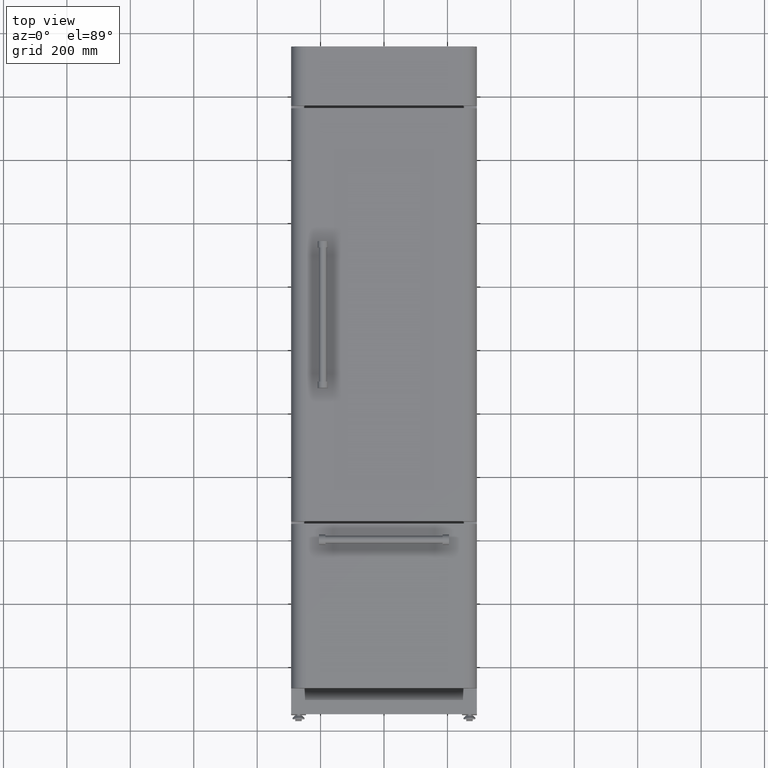
[diagram: clean part render]
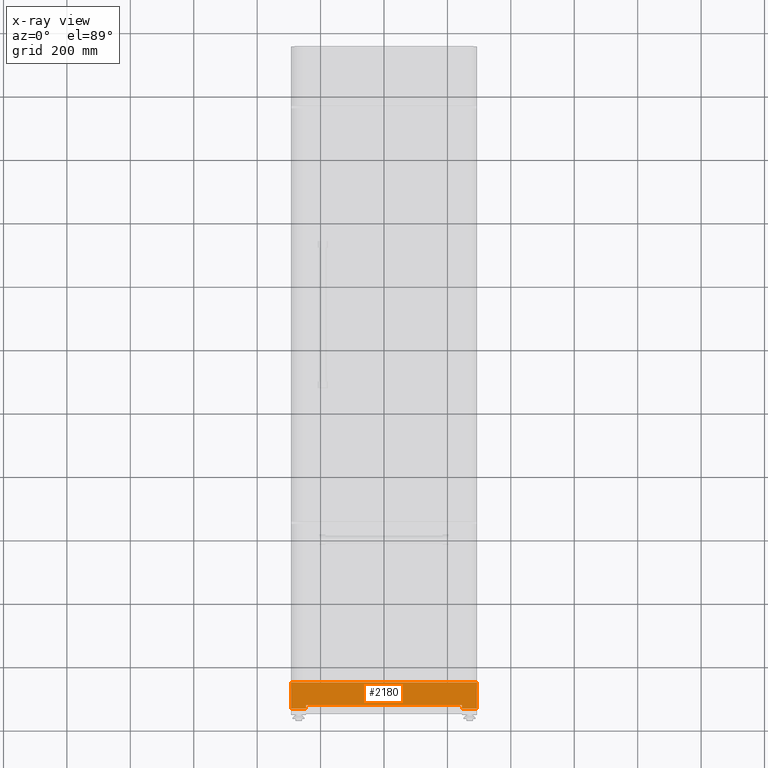
[diagram: x-ray — body ghosted, one internal face saturated and labeled with its STEP entity id]
A machine part, top view, then the same camera in x-ray: the body is ghosted and one INTERNAL B-rep face — a face not visible from any outside direction — is saturated and labeled: STEP entity #2180.
In plain terms, the highlighted planar face has unit normal (0, 0, -1).
Its self-contained STEP definition (entity closure, byte-faithful):
#13 = LINE ( 'NONE', #3944, #2074 ) ;
#76 = ORIENTED_EDGE ( 'NONE', *, *, #3961, .F. ) ;
#83 = LINE ( 'NONE', #472, #4228 ) ;
#123 = LINE ( 'NONE', #1436, #4274 ) ;
#227 = LINE ( 'NONE', #1966, #4376 ) ;
#335 = CARTESIAN_POINT ( 'NONE',  ( 293.0000000000000600, -856.5500000000000700, 240.0000000000002000 ) ) ;
#373 = CARTESIAN_POINT ( 'NONE',  ( -293.0000000000000000, -939.3499999999999100, 240.0000000000002000 ) ) ;
#386 = ORIENTED_EDGE ( 'NONE', *, *, #5160, .F. ) ;
#396 = EDGE_CURVE ( 'NONE', #4871, #1084, #2836, .T. ) ;
#472 = CARTESIAN_POINT ( 'NONE',  ( 293.0000000000000000, -939.3499999999999100, 240.0000000000002000 ) ) ;
#505 = EDGE_CURVE ( 'NONE', #1970, #760, #4749, .T. ) ;
#560 = CARTESIAN_POINT ( 'NONE',  ( -246.0000000000000000, -928.3499999999998000, 240.0000000000002000 ) ) ;
#619 = AXIS2_PLACEMENT_3D ( 'NONE', #1153, #3925, #3941 ) ;
#642 = CARTESIAN_POINT ( 'NONE',  ( -293.0000000000000000, -939.3499999999999100, 240.0000000000002000 ) ) ;
#760 = VERTEX_POINT ( 'NONE', #1390 ) ;
#778 = DIRECTION ( 'NONE',  ( 1.000000000000000000, -0.0000000000000000000, -0.0000000000000000000 ) ) ;
#811 = VERTEX_POINT ( 'NONE', #5220 ) ;
#1008 = DIRECTION ( 'NONE',  ( -1.000000000000000000, -0.0000000000000000000, -0.0000000000000000000 ) ) ;
#1084 = VERTEX_POINT ( 'NONE', #2349 ) ;
#1149 = VERTEX_POINT ( 'NONE', #5178 ) ;
#1153 = CARTESIAN_POINT ( 'NONE',  ( -293.0000000000000000, -939.3499999999999100, 240.0000000000002000 ) ) ;
#1213 = ORIENTED_EDGE ( 'NONE', *, *, #1357, .T. ) ;
#1214 = VECTOR ( 'NONE', #3407, 1000.000000000000000 ) ;
#1335 = ORIENTED_EDGE ( 'NONE', *, *, #396, .F. ) ;
#1357 = EDGE_CURVE ( 'NONE', #4871, #5120, #4896, .T. ) ;
#1377 = VERTEX_POINT ( 'NONE', #4256 ) ;
#1390 = CARTESIAN_POINT ( 'NONE',  ( 293.0000000000000600, -856.5500000000000700, 240.0000000000002000 ) ) ;
#1421 = ORIENTED_EDGE ( 'NONE', *, *, #4112, .F. ) ;
#1436 = CARTESIAN_POINT ( 'NONE',  ( -246.0000000000000000, -928.3499999999998000, 240.0000000000002000 ) ) ;
#1470 = CARTESIAN_POINT ( 'NONE',  ( -292.7999999999997800, -856.3500000000001400, 240.0000000000002000 ) ) ;
#1517 = CARTESIAN_POINT ( 'NONE',  ( -292.7999999999997800, -856.3500000000001400, 240.0000000000002000 ) ) ;
#1528 = ORIENTED_EDGE ( 'NONE', *, *, #4330, .T. ) ;
#1966 = CARTESIAN_POINT ( 'NONE',  ( -293.0000000000000000, -939.3499999999999100, 240.0000000000002000 ) ) ;
#1970 = VERTEX_POINT ( 'NONE', #4555 ) ;
#2074 = VECTOR ( 'NONE', #778, 1000.000000000000000 ) ;
#2152 = LINE ( 'NONE', #1470, #2716 ) ;
#2165 = VECTOR ( 'NONE', #2803, 1000.000000000000000 ) ;
#2180 = ADVANCED_FACE ( 'NONE', ( #3464 ), #3523, .F. ) ;
#2208 = CARTESIAN_POINT ( 'NONE',  ( -292.7999999999997800, -856.5500000000001800, 240.0000000000002000 ) ) ;
#2228 = CARTESIAN_POINT ( 'NONE',  ( 293.0000000000000000, -939.3499999999999100, 240.0000000000002000 ) ) ;
#2319 = EDGE_CURVE ( 'NONE', #811, #1970, #3988, .T. ) ;
#2324 = ORIENTED_EDGE ( 'NONE', *, *, #4855, .F. ) ;
#2332 = DIRECTION ( 'NONE',  ( 1.000000000000000000, -0.0000000000000000000, -0.0000000000000000000 ) ) ;
#2349 = CARTESIAN_POINT ( 'NONE',  ( 246.0000000000000000, -928.3499999999998000, 240.0000000000002000 ) ) ;
#2395 = EDGE_CURVE ( 'NONE', #2432, #1149, #227, .T. ) ;
#2432 = VERTEX_POINT ( 'NONE', #373 ) ;
#2488 = VECTOR ( 'NONE', #3113, 1000.000000000000000 ) ;
#2501 = EDGE_CURVE ( 'NONE', #1377, #4349, #5006, .T. ) ;
#2534 = ORIENTED_EDGE ( 'NONE', *, *, #505, .F. ) ;
#2542 = VECTOR ( 'NONE', #1008, 1000.000000000000000 ) ;
#2716 = VECTOR ( 'NONE', #4719, 1000.000000000000000 ) ;
#2803 = DIRECTION ( 'NONE',  ( 1.000000000000000000, 0.0000000000000000000, 0.0000000000000000000 ) ) ;
#2836 = LINE ( 'NONE', #4781, #4362 ) ;
#2997 = VECTOR ( 'NONE', #4699, 1000.000000000000000 ) ;
#3070 = CARTESIAN_POINT ( 'NONE',  ( -293.0000000000000000, -939.3499999999999100, 240.0000000000002000 ) ) ;
#3099 = ORIENTED_EDGE ( 'NONE', *, *, #5147, .F. ) ;
#3113 = DIRECTION ( 'NONE',  ( 1.000000000000000000, -0.0000000000000000000, -0.0000000000000000000 ) ) ;
#3185 = CARTESIAN_POINT ( 'NONE',  ( -292.9999999999998300, -856.5500000000001800, 240.0000000000002000 ) ) ;
#3407 = DIRECTION ( 'NONE',  ( 0.0000000000000000000, 1.000000000000000000, 0.0000000000000000000 ) ) ;
#3464 = FACE_OUTER_BOUND ( 'NONE', #5187, .T. ) ;
#3493 = ORIENTED_EDGE ( 'NONE', *, *, #2319, .F. ) ;
#3523 = PLANE ( 'NONE',  #619 ) ;
#3849 = VECTOR ( 'NONE', #4232, 1000.000000000000000 ) ;
#3910 = LINE ( 'NONE', #560, #2542 ) ;
#3925 = DIRECTION ( 'NONE',  ( 0.0000000000000000000, 0.0000000000000000000, -1.000000000000000000 ) ) ;
#3930 = DIRECTION ( 'NONE',  ( 0.0000000000000000000, 1.000000000000000000, 0.0000000000000000000 ) ) ;
#3941 = DIRECTION ( 'NONE',  ( -1.000000000000000000, 0.0000000000000000000, -0.0000000000000000000 ) ) ;
#3944 = CARTESIAN_POINT ( 'NONE',  ( -293.0000000000000000, -856.3500000000000200, 240.0000000000002000 ) ) ;
#3961 = EDGE_CURVE ( 'NONE', #1084, #4412, #3910, .T. ) ;
#3988 = LINE ( 'NONE', #5026, #3849 ) ;
#4092 = LINE ( 'NONE', #642, #1214 ) ;
#4112 = EDGE_CURVE ( 'NONE', #4349, #4125, #2152, .T. ) ;
#4125 = VERTEX_POINT ( 'NONE', #1517 ) ;
#4228 = VECTOR ( 'NONE', #3930, 1000.000000000000000 ) ;
#4232 = DIRECTION ( 'NONE',  ( 0.0000000000000000000, -1.000000000000000000, 0.0000000000000000000 ) ) ;
#4256 = CARTESIAN_POINT ( 'NONE',  ( -292.9999999999998300, -856.5500000000001800, 240.0000000000002000 ) ) ;
#4274 = VECTOR ( 'NONE', #4663, 1000.000000000000000 ) ;
#4330 = EDGE_CURVE ( 'NONE', #5120, #760, #83, .T. ) ;
#4349 = VERTEX_POINT ( 'NONE', #2208 ) ;
#4362 = VECTOR ( 'NONE', #5131, 1000.000000000000000 ) ;
#4376 = VECTOR ( 'NONE', #2332, 1000.000000000000000 ) ;
#4412 = VERTEX_POINT ( 'NONE', #5061 ) ;
#4555 = CARTESIAN_POINT ( 'NONE',  ( 292.8000000000000100, -856.5500000000000700, 240.0000000000002000 ) ) ;
#4559 = ORIENTED_EDGE ( 'NONE', *, *, #2501, .F. ) ;
#4663 = DIRECTION ( 'NONE',  ( 0.0000000000000000000, -1.000000000000000000, 0.0000000000000000000 ) ) ;
#4699 = DIRECTION ( 'NONE',  ( 1.000000000000000000, -0.0000000000000000000, -0.0000000000000000000 ) ) ;
#4719 = DIRECTION ( 'NONE',  ( -0.0000000000000000000, 1.000000000000000000, -0.0000000000000000000 ) ) ;
#4749 = LINE ( 'NONE', #335, #2488 ) ;
#4781 = CARTESIAN_POINT ( 'NONE',  ( 246.0000000000000000, -928.3499999999998000, 240.0000000000002000 ) ) ;
#4855 = EDGE_CURVE ( 'NONE', #4125, #811, #13, .T. ) ;
#4871 = VERTEX_POINT ( 'NONE', #5210 ) ;
#4896 = LINE ( 'NONE', #3070, #2997 ) ;
#4969 = ORIENTED_EDGE ( 'NONE', *, *, #2395, .T. ) ;
#5006 = LINE ( 'NONE', #3185, #2165 ) ;
#5026 = CARTESIAN_POINT ( 'NONE',  ( 292.8000000000000100, -856.3500000000000200, 240.0000000000002000 ) ) ;
#5061 = CARTESIAN_POINT ( 'NONE',  ( -246.0000000000000000, -928.3499999999998000, 240.0000000000002000 ) ) ;
#5120 = VERTEX_POINT ( 'NONE', #2228 ) ;
#5131 = DIRECTION ( 'NONE',  ( -0.0000000000000000000, 1.000000000000000000, -0.0000000000000000000 ) ) ;
#5147 = EDGE_CURVE ( 'NONE', #2432, #1377, #4092, .T. ) ;
#5160 = EDGE_CURVE ( 'NONE', #4412, #1149, #123, .T. ) ;
#5178 = CARTESIAN_POINT ( 'NONE',  ( -246.0000000000000000, -939.3499999999999100, 240.0000000000002000 ) ) ;
#5187 = EDGE_LOOP ( 'NONE', ( #2324, #1421, #4559, #3099, #4969, #386, #76, #1335, #1213, #1528, #2534, #3493 ) ) ;
#5210 = CARTESIAN_POINT ( 'NONE',  ( 246.0000000000000000, -939.3499999999999100, 240.0000000000002000 ) ) ;
#5220 = CARTESIAN_POINT ( 'NONE',  ( 292.8000000000000100, -856.3500000000000200, 240.0000000000002000 ) ) ;